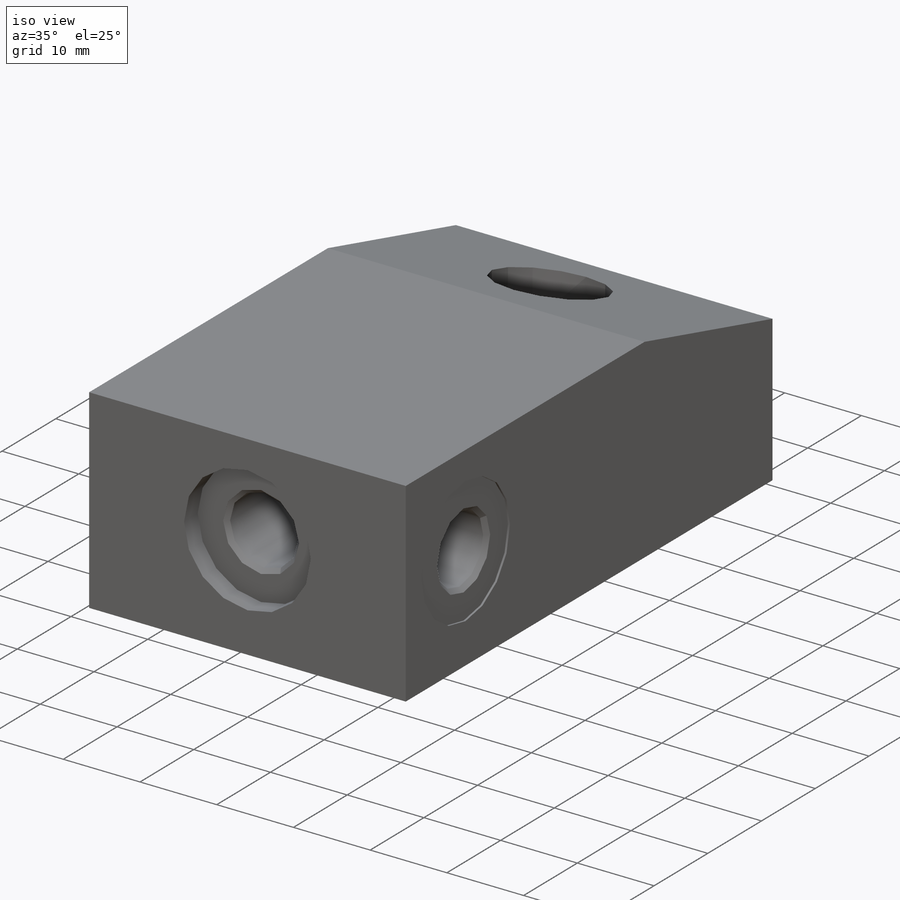
[diagram: iso view]
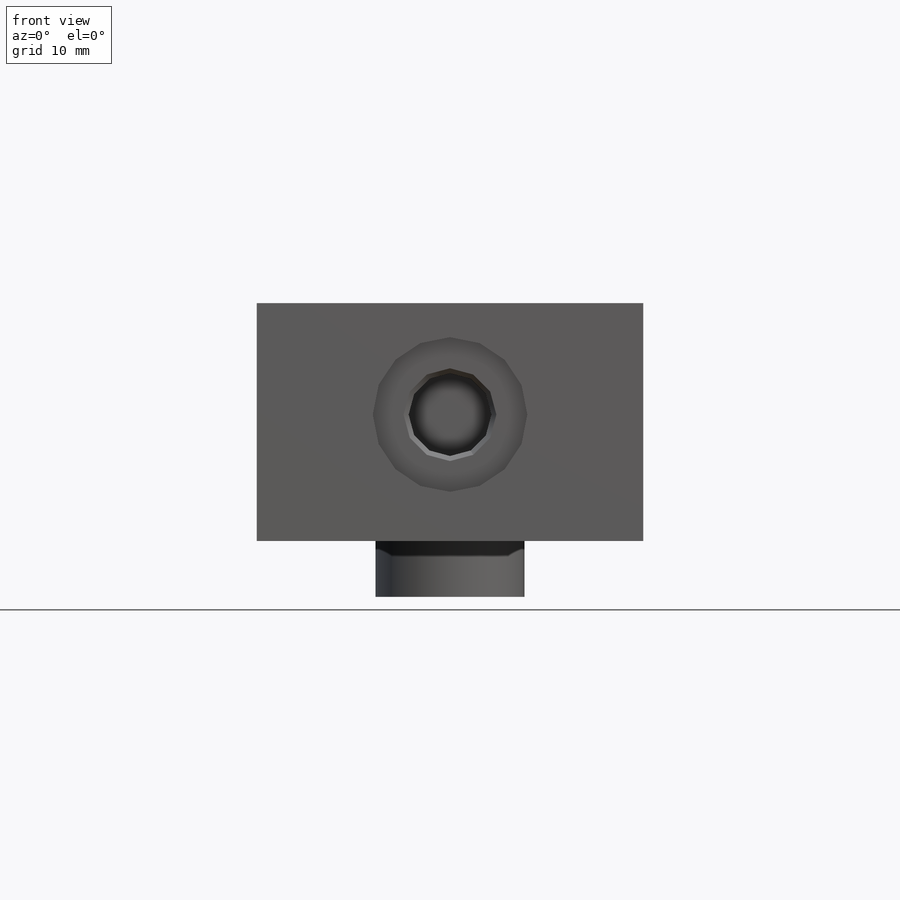
[diagram: front view]
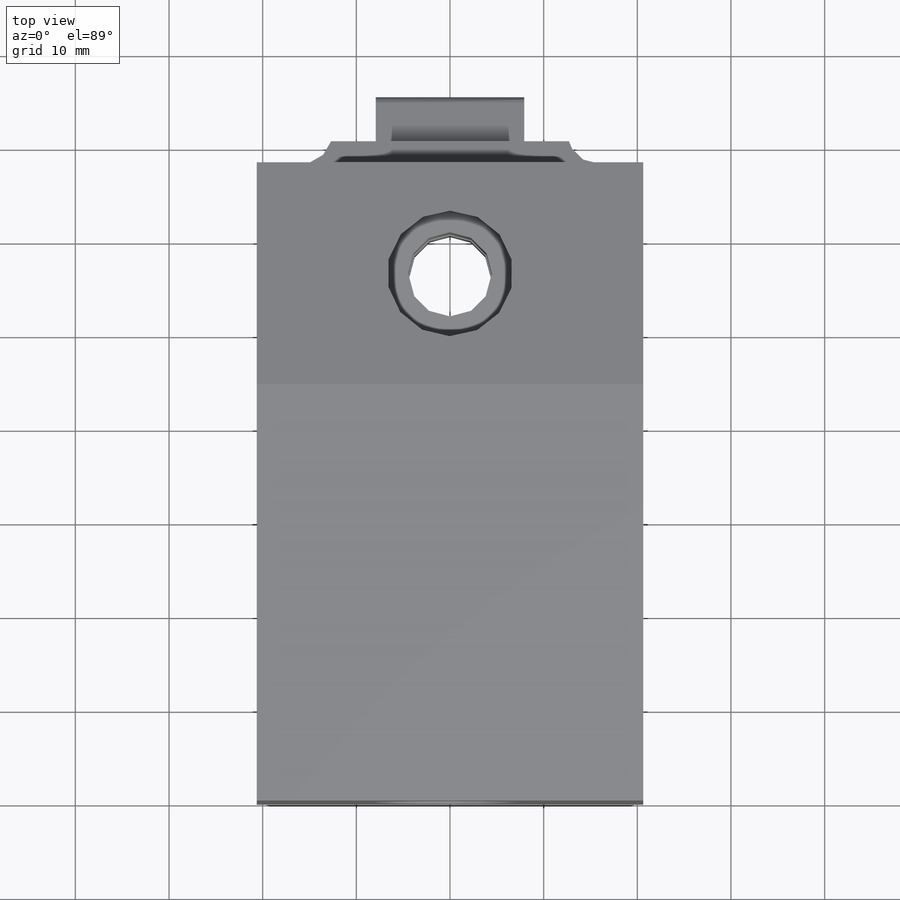
[diagram: top view]
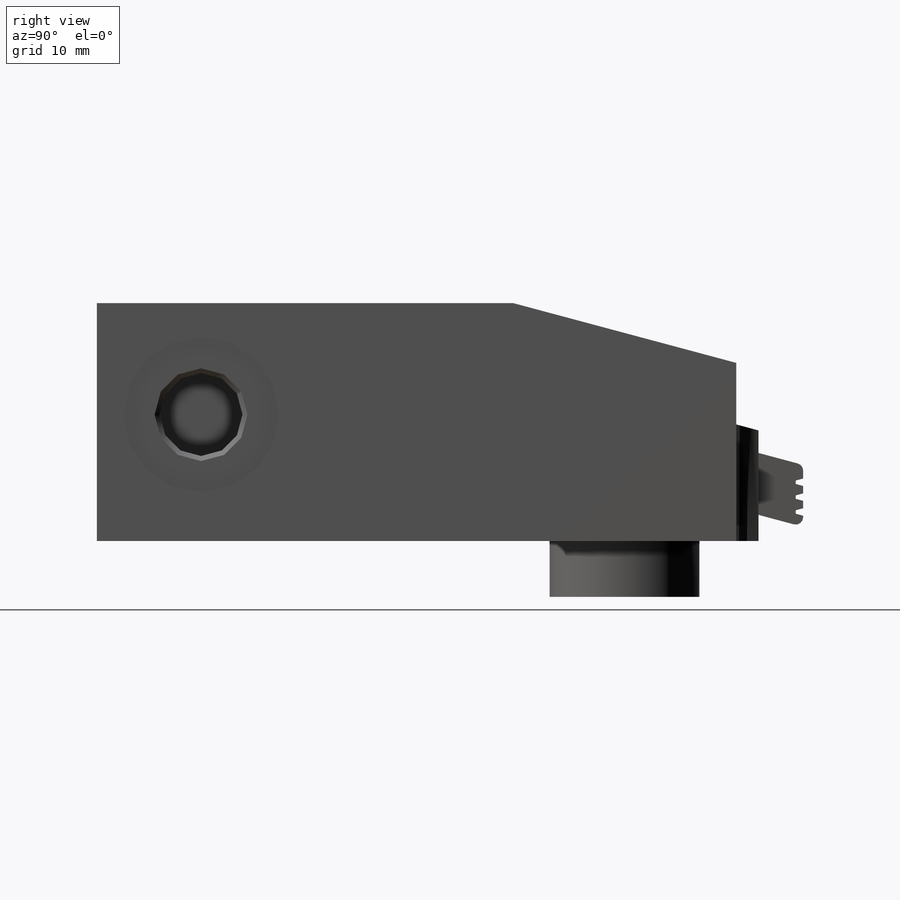
[diagram: right view]
SOLIDWORKS PART (.sldprt)
format: sldprt  version: not decoded by parser v0  size: 327,680 bytes
history: native  units: mm
features: sketch x9, plane x6, extrude x3, cut_extrude x3, cut_revolve x3, material x1, pattern_linear x1, fillet x1 (+13 scaffold rows collapsed)
feature tree (40):
  scaffold x13  (default folders/planes/origin — collapsed)
  material  "Alloy Steel"
  plane  "Plane1"
  sketch  "Sketch1"  dims[c1.D1=25.4mm c1.D2=44.45mm c1.D3=24.6634mm c2.D3=15.0deg c2.D4=~2.364385mm c2.D5=6.35mm c2.D6=70.6374mm]
  extrude  "Extrude1"  Depth=20.6375mm
  sketch  "Sketch2"  dims[D1=3.175mm D2=7.9375mm D3=~2.364385mm]
  cut_extrude  "Cut-Extrude1"  Depth=0mm
  plane  "Plane2"
  sketch  "Sketch3"  dims[c1.D1=~4.886643mm c1.D2=~17.338357mm c1.D3=3.175mm c2.D1=18.2372mm c2.D2=~3.280438mm c2.D3=6.35mm c2.D4=13.487mm c2.D5=8.992mm c2.D6=3.175mm c2.D7=15.9512mm]
  cut_revolve  "Cut-Revolve1"  Angle=360deg
  plane  "Plane3"
  sketch  "Sketch4"  dims[D1=8.7376mm D2=~15.99946mm]
  extrude  "Extrude2"  Depth=9.144mm
  plane  "Plane5"
  sketch  "Sketch6"  dims[D1=6.388mm D2=2.3242mm D3=4.7752mm]
  extrude  "Extrude3"  Depth=7.925mm
  plane  "Plane6"
  sketch  "Sketch7"  dims[D1=~0.79375mm D2=1.5875mm D3=~0.79375mm D4=~0.368381mm]
  cut_extrude  "Cut-Extrude2"  Depth=49.53mm
  pattern_linear  "LPattern2"  Count1=3 Count2=1 Spacing1=1.5875mm Spacing2=2.54mm
  fillet  "Fillet1"  Radius=0.7874mm
  sketch  "Sketch11"  dims[c1.D1=15.9512mm c1.D2=6.629mm c2.D1=47.625mm]
  cut_extrude  "Cut-Extrude3"  Depth=4.7498mm
  sketch  "Sketch12"  dims[c1.D1=13.4874mm c1.D2=16.51mm c1.D3=2.54mm c1.D4=~1.917174mm c2.D4=12.0deg c2.D5=9.906mm c2.D6=0.01mm c2.D7=~1.897759mm c3.D7=45.0deg c3.D8=8.839mm c3.D9=10.566mm]
  cut_revolve  "Cut-Revolve2"  Angle=360deg
  plane  "Plane7"  Offset=11.1252mm
  sketch  "Sketch13"  dims[c1.D1=16.51mm c1.D2=~2.70849mm c2.D2=12.0deg c2.D3=0.254mm c2.D4=2.5527mm c2.D5=~2.54957mm c3.D5=45.0deg c3.D6=9.906mm c3.D7=10.566mm c3.D8=8.839mm c3.D2=0.01mm]
  cut_revolve  "Cut-Revolve3"  Angle=360deg
decode coverage: 20 of 20 modeling features carry decoded parameters
note: ~ marks probable driven/reference dimensions
note: suppression state not decoded; provenance and decode notes live in map.json
